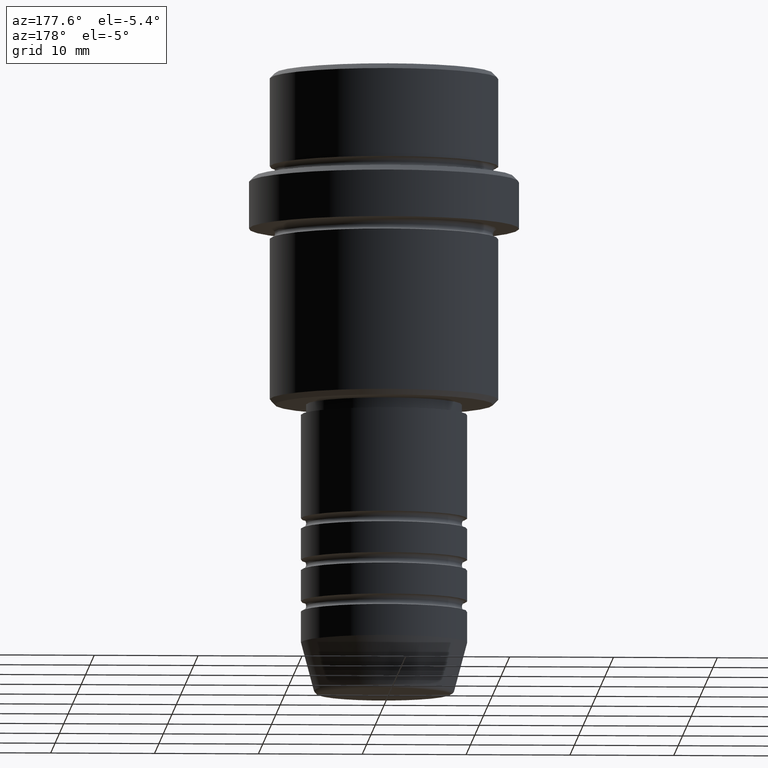
[diagram: clean part render]
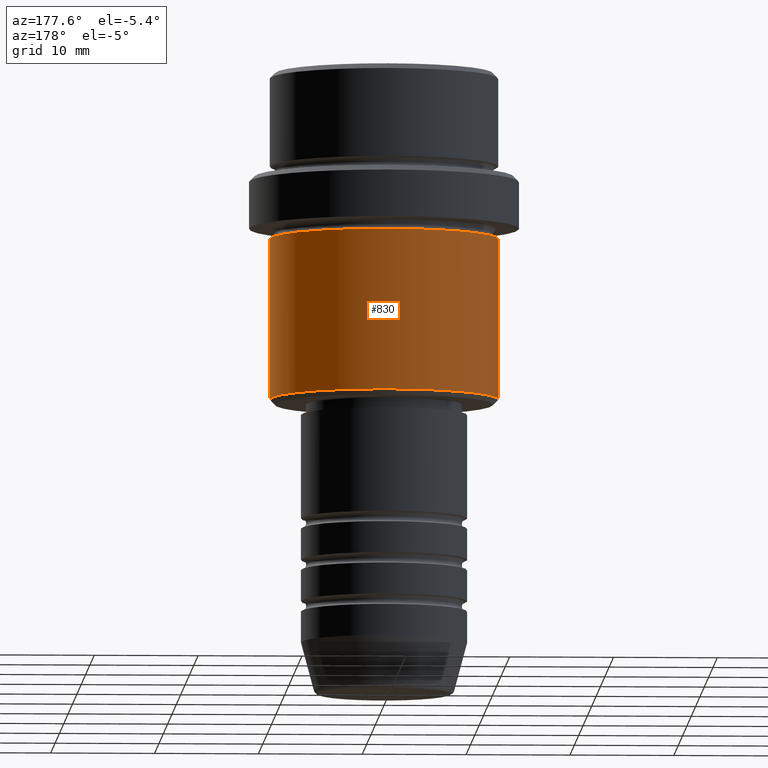
[diagram: same view with one face highlighted and labeled with its STEP entity id]
A machine part, auxiliary view. The second image highlights one B-rep face of the part: STEP entity #830.
In plain terms, the highlighted cylindrical surface (partial cylindrical patch) has radius 11 mm, axis along (-0, -0, 1).
Its self-contained STEP definition (entity closure, byte-faithful):
#213 = AXIS2_PLACEMENT_3D ( 'NONE', #442, #861, #1325 ) ;
#242 = CARTESIAN_POINT ( 'NONE',  ( -10.99999999999997158, 1.347111479062085052E-15, -31.50000000000000000 ) ) ;
#266 = CARTESIAN_POINT ( 'NONE',  ( 0.000000000000000000, 0.000000000000000000, 0.000000000000000000 ) ) ;
#356 = VERTEX_POINT ( 'NONE', #451 ) ;
#370 = CARTESIAN_POINT ( 'NONE',  ( 10.99999999999997158, 0.000000000000000000, -31.50000000000000000 ) ) ;
#383 = DIRECTION ( 'NONE',  ( 1.000000000000000000, 0.000000000000000000, 0.000000000000000000 ) ) ;
#413 = EDGE_CURVE ( 'NONE', #1121, #1343, #1098, .T. ) ;
#417 = DIRECTION ( 'NONE',  ( -0.000000000000000000, -0.000000000000000000, 1.000000000000000000 ) ) ;
#442 = CARTESIAN_POINT ( 'NONE',  ( 0.000000000000000000, 0.000000000000000000, -16.00000000000000355 ) ) ;
#451 = CARTESIAN_POINT ( 'NONE',  ( -10.99999999999997158, 1.347111479062085052E-15, -16.00000000000000355 ) ) ;
#452 = ORIENTED_EDGE ( 'NONE', *, *, #413, .T. ) ;
#468 = EDGE_CURVE ( 'NONE', #1121, #1226, #947, .T. ) ;
#497 = DIRECTION ( 'NONE',  ( -0.000000000000000000, -0.000000000000000000, 1.000000000000000000 ) ) ;
#536 = CARTESIAN_POINT ( 'NONE',  ( 0.000000000000000000, 0.000000000000000000, -31.50000000000000000 ) ) ;
#552 = EDGE_CURVE ( 'NONE', #1226, #356, #1201, .T. ) ;
#612 = CARTESIAN_POINT ( 'NONE',  ( 10.99999999999997158, 0.000000000000000000, 0.000000000000000000 ) ) ;
#654 = EDGE_CURVE ( 'NONE', #1343, #356, #657, .T. ) ;
#657 = LINE ( 'NONE', #1070, #1270 ) ;
#682 = ORIENTED_EDGE ( 'NONE', *, *, #552, .F. ) ;
#701 = AXIS2_PLACEMENT_3D ( 'NONE', #266, #417, #383 ) ;
#719 = DIRECTION ( 'NONE',  ( -1.000000000000000000, 0.000000000000000000, 0.000000000000000000 ) ) ;
#830 = ADVANCED_FACE ( 'NONE', ( #1033 ), #941, .T. ) ;
#860 = ORIENTED_EDGE ( 'NONE', *, *, #468, .F. ) ;
#861 = DIRECTION ( 'NONE',  ( -0.000000000000000000, -0.000000000000000000, 1.000000000000000000 ) ) ;
#909 = ORIENTED_EDGE ( 'NONE', *, *, #654, .T. ) ;
#941 = CYLINDRICAL_SURFACE ( 'NONE', #701, 10.99999999999997158 ) ;
#942 = DIRECTION ( 'NONE',  ( -0.000000000000000000, -0.000000000000000000, 1.000000000000000000 ) ) ;
#947 = LINE ( 'NONE', #612, #1362 ) ;
#1033 = FACE_OUTER_BOUND ( 'NONE', #1234, .T. ) ;
#1070 = CARTESIAN_POINT ( 'NONE',  ( -10.99999999999997158, 1.347111479062085052E-15, 0.000000000000000000 ) ) ;
#1098 = CIRCLE ( 'NONE', #1242, 10.99999999999997158 ) ;
#1121 = VERTEX_POINT ( 'NONE', #370 ) ;
#1201 = CIRCLE ( 'NONE', #213, 10.99999999999997158 ) ;
#1226 = VERTEX_POINT ( 'NONE', #1291 ) ;
#1234 = EDGE_LOOP ( 'NONE', ( #452, #909, #682, #860 ) ) ;
#1242 = AXIS2_PLACEMENT_3D ( 'NONE', #536, #1281, #719 ) ;
#1270 = VECTOR ( 'NONE', #497, 1000.000000000000000 ) ;
#1281 = DIRECTION ( 'NONE',  ( -0.000000000000000000, -0.000000000000000000, 1.000000000000000000 ) ) ;
#1291 = CARTESIAN_POINT ( 'NONE',  ( 10.99999999999997158, 0.000000000000000000, -16.00000000000000355 ) ) ;
#1325 = DIRECTION ( 'NONE',  ( 1.000000000000000000, 0.000000000000000000, 0.000000000000000000 ) ) ;
#1343 = VERTEX_POINT ( 'NONE', #242 ) ;
#1362 = VECTOR ( 'NONE', #942, 1000.000000000000000 ) ;